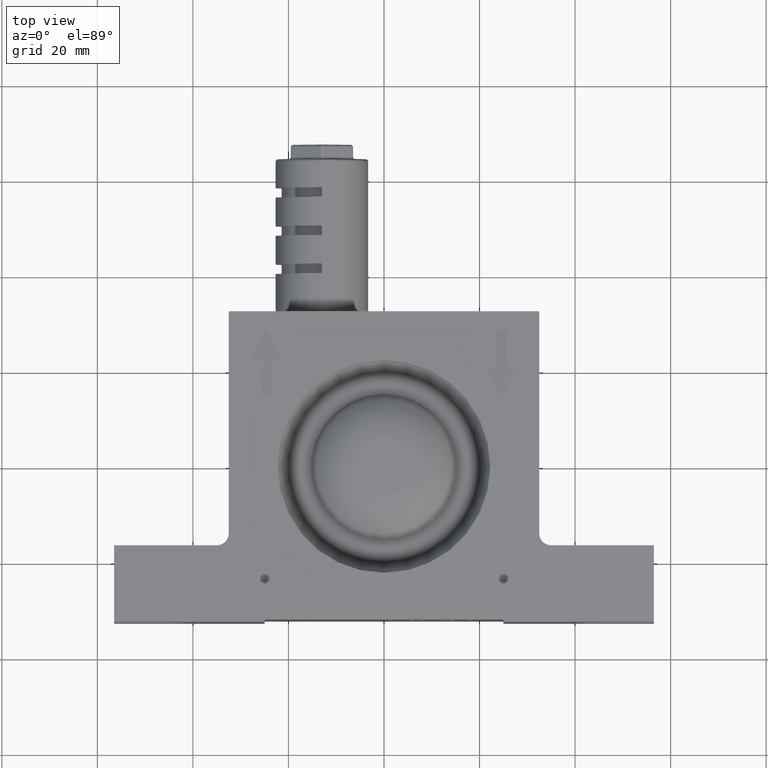
[diagram: clean part render]
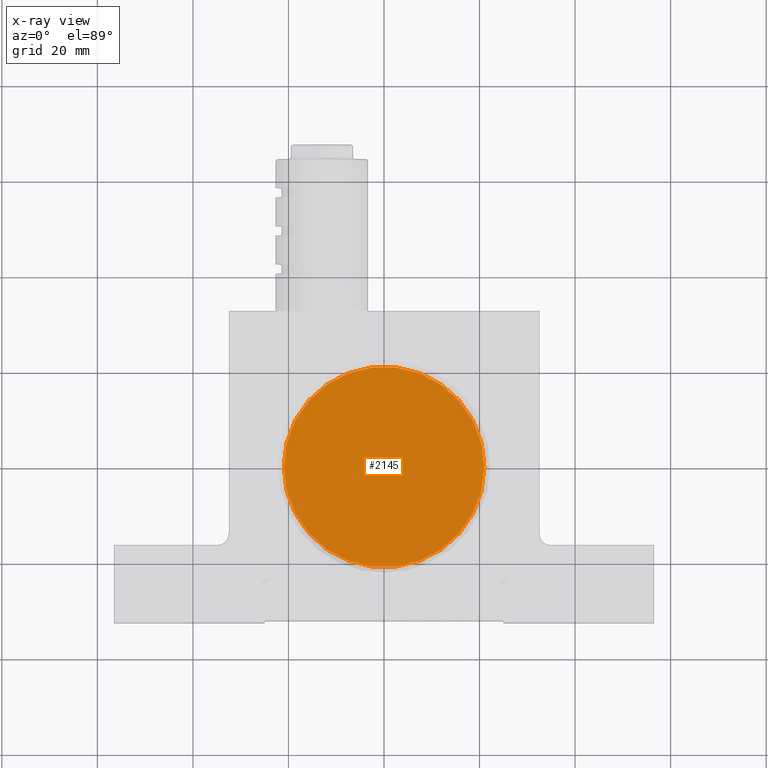
[diagram: x-ray — body ghosted, one internal face saturated and labeled with its STEP entity id]
A machine part, top view, then the same camera in x-ray: the body is ghosted and one INTERNAL B-rep face — a face not visible from any outside direction — is saturated and labeled: STEP entity #2145.
In plain terms, the highlighted planar face has unit normal (0, 0, -1).
Its self-contained STEP definition (entity closure, byte-faithful):
#437 = VERTEX_POINT ( 'NONE', #473 ) ;
#473 = CARTESIAN_POINT ( 'NONE',  ( 21.00000000000000000, 2.571758278209441700E-015, 6.000000000000000000 ) ) ;
#974 = ORIENTED_EDGE ( 'NONE', *, *, #3541, .F. ) ;
#995 = CIRCLE ( 'NONE', #6676, 21.00000000000000000 ) ;
#1181 = DIRECTION ( 'NONE',  ( -1.000000000000000000, 0.0000000000000000000, 0.0000000000000000000 ) ) ;
#1328 = VERTEX_POINT ( 'NONE', #3902 ) ;
#1611 = EDGE_CURVE ( 'NONE', #437, #1328, #1622, .T. ) ;
#1622 = CIRCLE ( 'NONE', #3046, 21.00000000000000000 ) ;
#2145 = ADVANCED_FACE ( 'NONE', ( #4582 ), #2477, .F. ) ;
#2460 = DIRECTION ( 'NONE',  ( 0.0000000000000000000, 0.0000000000000000000, -1.000000000000000000 ) ) ;
#2477 = PLANE ( 'NONE',  #5423 ) ;
#2606 = CARTESIAN_POINT ( 'NONE',  ( 0.0000000000000000000, 0.0000000000000000000, 6.000000000000000000 ) ) ;
#2623 = DIRECTION ( 'NONE',  ( -1.000000000000000000, 0.0000000000000000000, 0.0000000000000000000 ) ) ;
#2806 = DIRECTION ( 'NONE',  ( 0.0000000000000000000, 0.0000000000000000000, -1.000000000000000000 ) ) ;
#3046 = AXIS2_PLACEMENT_3D ( 'NONE', #2606, #5863, #2623 ) ;
#3541 = EDGE_CURVE ( 'NONE', #1328, #437, #995, .T. ) ;
#3823 = CARTESIAN_POINT ( 'NONE',  ( 0.0000000000000000000, 0.0000000000000000000, 6.000000000000000000 ) ) ;
#3902 = CARTESIAN_POINT ( 'NONE',  ( -21.00000000000000000, 0.0000000000000000000, 6.000000000000000000 ) ) ;
#4386 = EDGE_LOOP ( 'NONE', ( #974, #4976 ) ) ;
#4582 = FACE_OUTER_BOUND ( 'NONE', #4386, .T. ) ;
#4976 = ORIENTED_EDGE ( 'NONE', *, *, #1611, .F. ) ;
#5167 = CARTESIAN_POINT ( 'NONE',  ( 0.0000000000000000000, 9.184850993605159800E-016, 6.000000000000000000 ) ) ;
#5423 = AXIS2_PLACEMENT_3D ( 'NONE', #5167, #2460, #6262 ) ;
#5863 = DIRECTION ( 'NONE',  ( 0.0000000000000000000, 0.0000000000000000000, -1.000000000000000000 ) ) ;
#6262 = DIRECTION ( 'NONE',  ( -1.000000000000000000, 0.0000000000000000000, 0.0000000000000000000 ) ) ;
#6676 = AXIS2_PLACEMENT_3D ( 'NONE', #3823, #2806, #1181 ) ;